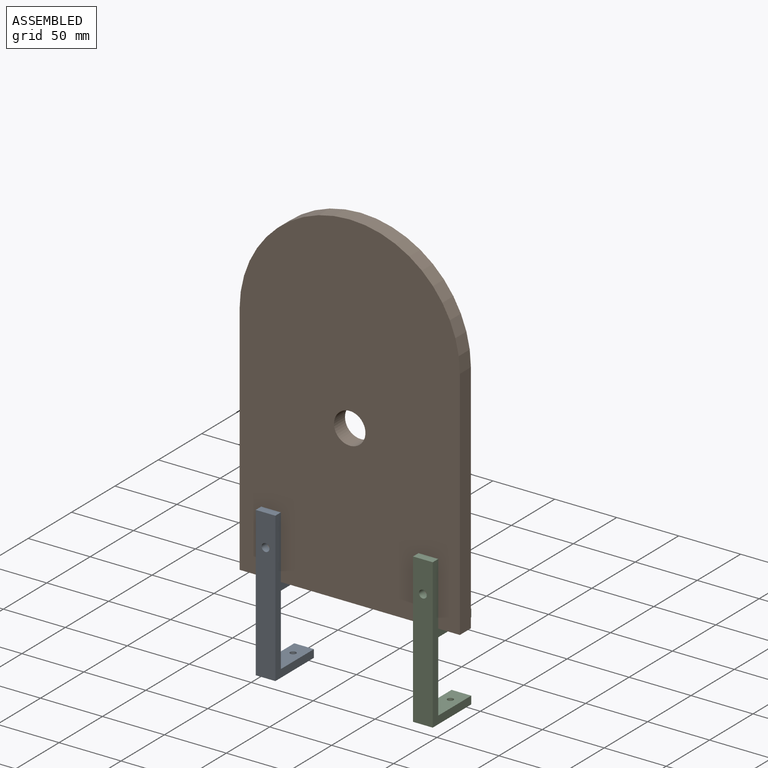
[diagram: assembled view]
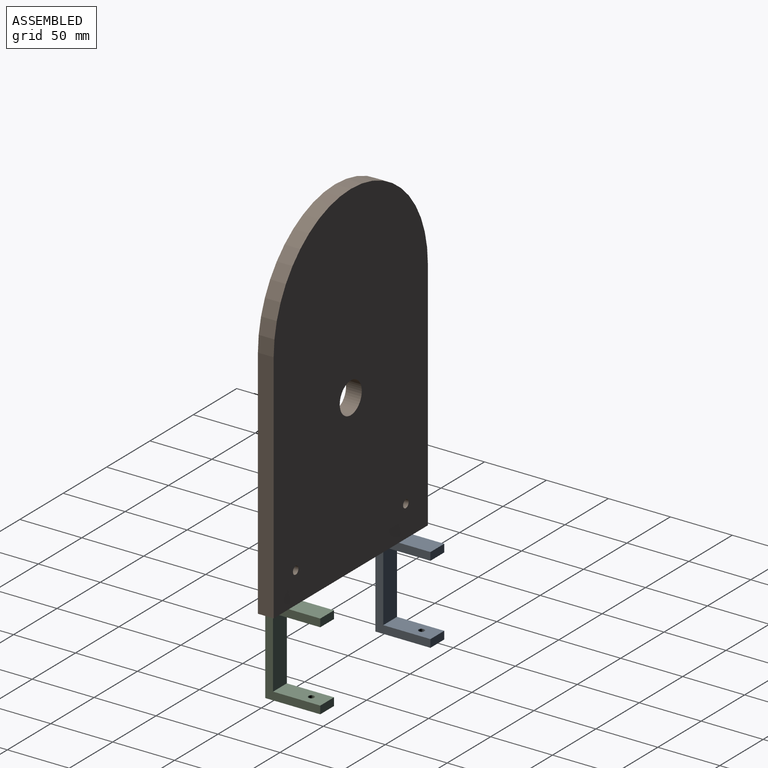
[diagram: assembled view, second angle]
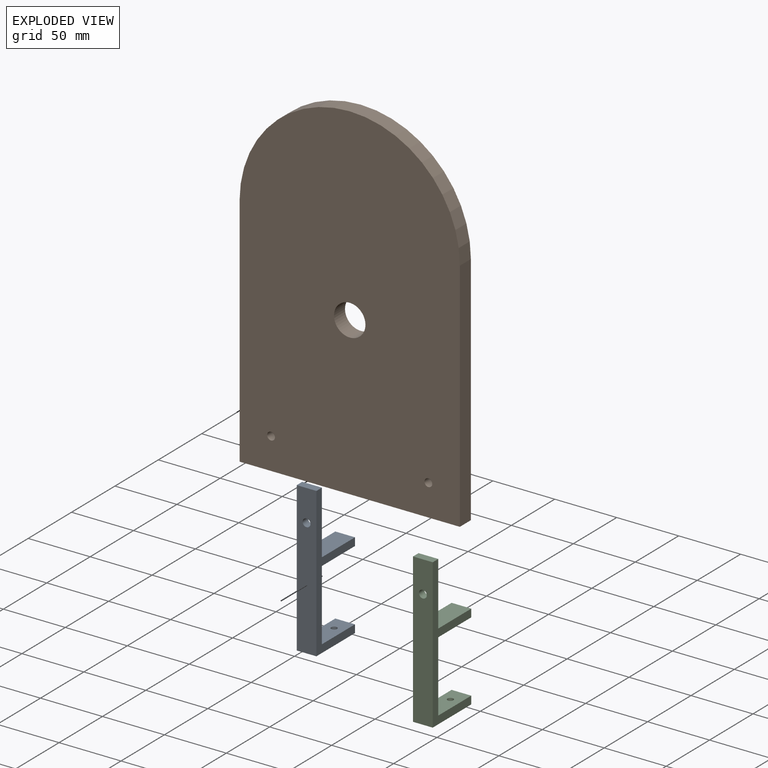
[diagram: exploded view]
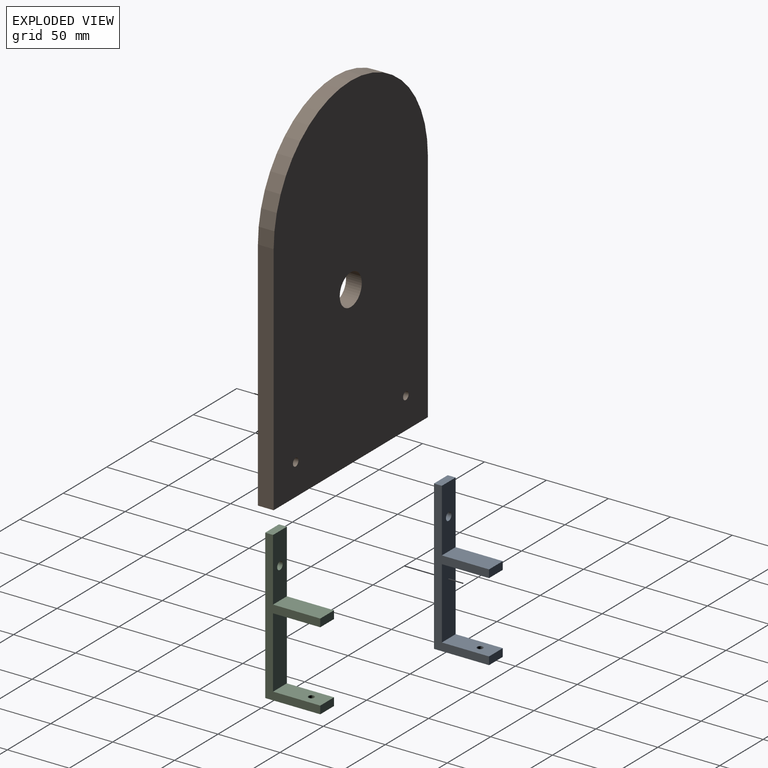
[diagram: exploded view, second angle]
ASSEMBLY  parts=3 mates=2
PART A: 14 faces, bbox 15.9x44.5x120.7 mm
  f0: plane 57.15x15.88mm, normal (0,1,0), area 907.3mm2, adj f1,f9,f10,f11
  f1: plane 38.1x15.88mm, normal (0,0,-1), area 604.8mm2, adj f0,f2,f10,f11
  f2: plane 15.88x6.35mm, normal (0,1,0), area 100.8mm2, adj f1,f3,f10,f11
  f3: plane 38.1x15.88mm, normal (0,0,1), area 604.8mm2, adj f2,f4,f10,f11
  f4: plane 50.8x15.88mm, normal (0,1,0), area 774.8mm2, adj f3,f5,f10,f11,f12
  f5: plane 15.88x6.35mm, normal (0,0,1), area 100.8mm2, adj f4,f6,f10,f11
  f6: plane 120.65x15.88mm, normal (0,-1,0), area 1883.6mm2, adj f5,f7,f10,f11,f12
  f7: plane 44.45x15.88mm, normal (0,0,-1), area 687.8mm2, adj f6,f8,f10,f11,f13
  f8: plane 15.88x6.35mm, normal (0,1,0), area 100.8mm2, adj f7,f9,f10,f11
  f9: plane 38.1x15.88mm, normal (0,0,1), area 587mm2, adj f0,f8,f10,f11,f13
  f10: plane 120.65x44.45mm, normal (1,0,0), area 1250mm2, adj f0,f1,f2,f3,f4,f5,f6,f7
  f11: plane 120.65x44.45mm, normal (-1,0,0), area 1250mm2, adj f0,f1,f2,f3,f4,f5,f6,f7
  f12: cylinder r=3.17mm len=6.35mm, axis (0,-1,0), area 126.7mm2, adj f4,f6
  f13: cylinder r=2.38mm len=6.35mm, axis (0,0,1), area 95mm2, adj f7,f9
PART B: 9 faces, bbox 177.8x12.7x279.4 mm
  f0: plane 177.8x12.7mm, normal (0,0,-1), area 2258.1mm2, adj f1,f4,f5,f6
  f1: plane 190.5x12.7mm, normal (1,0,0), area 2419.3mm2, adj f0,f2,f5,f6
  f2: cylinder r=88.9mm len=177.8mm, axis (0,1,0), area 3547mm2, adj f1,f4,f5,f6
  f3: cylinder r=12.7mm len=25.4mm, axis (0,1,0), area 1013.4mm2, adj f5,f6
  f4: plane 190.5x12.7mm, normal (-1,0,0), area 2419.3mm2, adj f0,f2,f5,f6
  f5: plane 279.4x177.8mm, normal (0,-1,0), area 45715.2mm2, adj f0,f1,f2,f3,f4,f7,f8
  f6: plane 279.4x177.8mm, normal (0,1,0), area 45715.2mm2, adj f0,f1,f2,f3,f4,f7,f8
  f7: cylinder r=3.17mm len=12.7mm, axis (0,-1,0), area 253.4mm2, adj f5,f6
  f8: cylinder r=3.17mm len=12.7mm, axis (0,-1,0), area 253.4mm2, adj f5,f6
PART C: same geometry as A
PLACE A t=(-138.71,-47.92,15.19)mm
PLACE B t=(-75.21,-30.46,154.89)mm
PLACE C t=(-11.71,-47.92,15.19)mm
MATE fastened B.f5 <-> A.f4  axis (0,-1,0) through (-75.21,-43.16,15.19)mm
MATE fastened B.f5 <-> C.f4  axis (0,-1,0) through (-75.21,-43.16,15.19)mm
